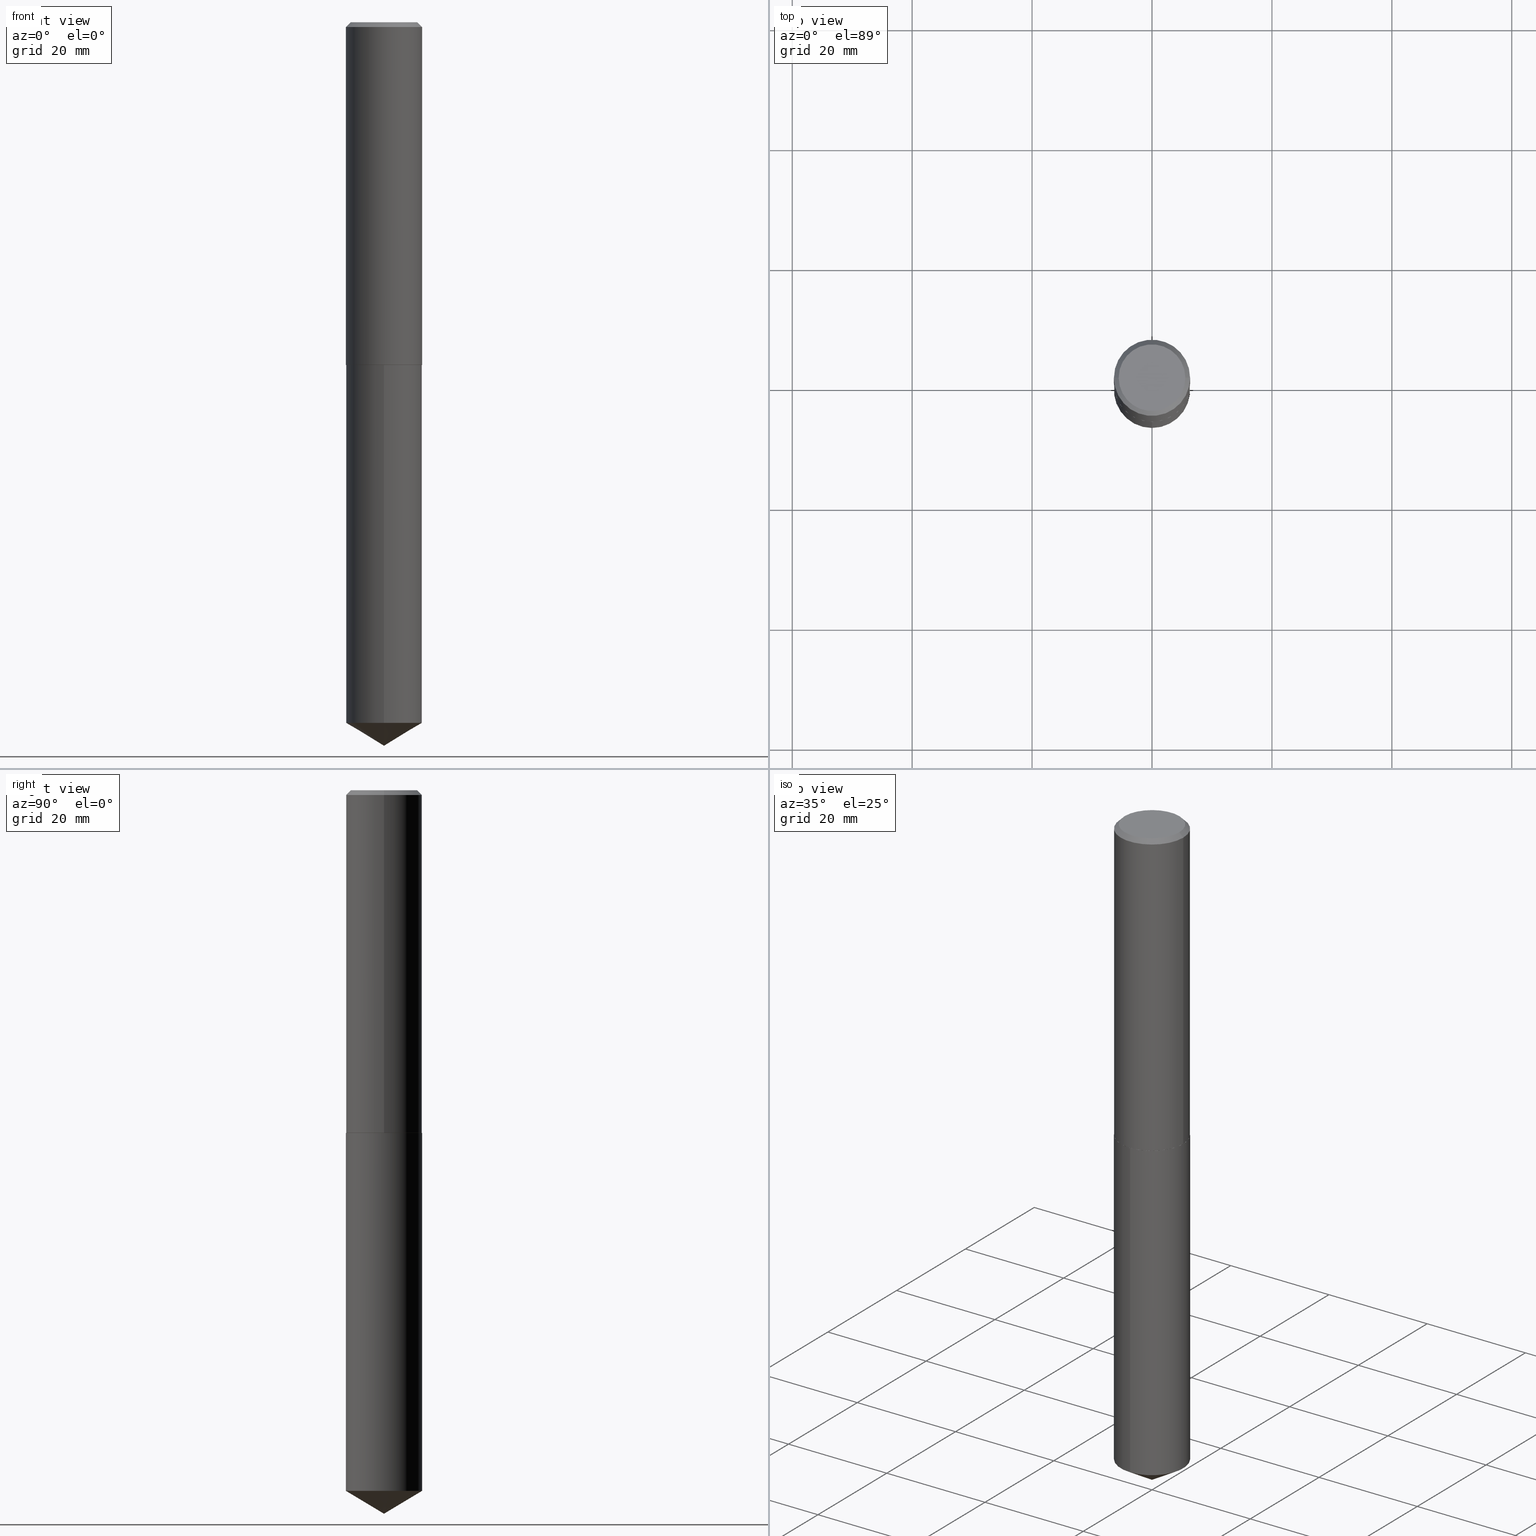
[diagram: canonical four-view strip — front | top / right | iso, engineering-drawing reading convention]
A machine part, canonical four-view strip (front | top / right | iso — engineering-drawing reading convention). The complete STEP part file that produces these views, byte-faithful:
ISO-10303-21;
HEADER;
FILE_DESCRIPTION (( 'STEP AP203' ),
    '1' );
FILE_NAME ('57213.STEP',
    '2024-04-23T00:07:51',
    ( '' ),
    ( '' ),
    'SwSTEP 2.0',
    'SolidWorks 2023',
    '' );
FILE_SCHEMA (( 'CONFIG_CONTROL_DESIGN' ));
ENDSEC;

DATA;
#1 = DIRECTION ( 'NONE',  ( 1.000000000000000000, -6.982962677686266711E-15, 4.876188151940832700E-29 ) ) ;
#2 = CARTESIAN_POINT ( 'NONE',  ( 5.502304813916556222E-29, -7.855833012397076871E-15, -2.249999999999999556 ) ) ;
#3 = CARTESIAN_POINT ( 'NONE',  ( 5.501082079513464541E-29, -7.854087271727656156E-15, -2.249499999999999833 ) ) ;
#4 = LINE ( 'NONE', #264, #312 ) ;
#5 = APPROVAL_DATE_TIME ( #248, #327 ) ;
#6 = VECTOR ( 'NONE', #35, 39.37007874015748143 ) ;
#7 = ADVANCED_FACE ( 'NONE', ( #27 ), #55, .T. ) ;
#8 = DIRECTION ( 'NONE',  ( 1.000000000000000000, -6.982962677686265922E-15, 4.876176775795935793E-29 ) ) ;
#9 = ORIENTED_EDGE ( 'NONE', *, *, #237, .F. ) ;
#10 = FACE_OUTER_BOUND ( 'NONE', #390, .T. ) ;
#11 = ADVANCED_FACE ( 'NONE', ( #207 ), #85, .F. ) ;
#12 = CARTESIAN_POINT ( 'NONE',  ( 1.124876667310066739E-28, -1.605986773344265841E-14, -4.599784845243109821 ) ) ;
#13 = ADVANCED_FACE ( 'NONE', ( #156 ), #296, .T. ) ;
#14 = ORGANIZATION ( 'UNSPECIFIED', 'UNSPECIFIED', '' ) ;
#15 = AXIS2_PLACEMENT_3D ( 'NONE', #132, #331, #268 ) ;
#16 = DIRECTION ( 'NONE',  ( -2.445468806185136597E-29, 3.491481338843145583E-15, 1.000000000000000000 ) ) ;
#17 = FACE_OUTER_BOUND ( 'NONE', #108, .T. ) ;
#18 = VERTEX_POINT ( 'NONE', #36 ) ;
#19 = CARTESIAN_POINT ( 'NONE',  ( 5.501082079513464541E-29, -7.854087271727656156E-15, -2.249499999999999833 ) ) ;
#20 = APPLICATION_CONTEXT ( 'configuration controlled 3d designs of mechanical parts and assemblies' ) ;
#21 = CYLINDRICAL_SURFACE ( 'NONE', #245, 0.2500000000000000000 ) ;
#22 = ORIENTED_EDGE ( 'NONE', *, *, #355, .T. ) ;
#23 = CALENDAR_DATE ( 2024, 22, 4 ) ;
#24 = CC_DESIGN_APPROVAL ( #327, ( #48 ) ) ;
#25 = AXIS2_PLACEMENT_3D ( 'NONE', #162, #356, #8 ) ;
#26 = APPROVAL_ROLE ( '' ) ;
#27 = FACE_OUTER_BOUND ( 'NONE', #105, .T. ) ;
#28 = CARTESIAN_POINT ( 'NONE',  ( 7.642090019328604414E-31, -1.091087918388490513E-16, -0.03125000000000021511 ) ) ;
#29 = DIRECTION ( 'NONE',  ( 2.445526819537206004E-29, -3.491398260421066944E-15, -1.000000000000000000 ) ) ;
#30 = ORIENTED_EDGE ( 'NONE', *, *, #355, .F. ) ;
#31 = CC_DESIGN_APPROVAL ( #315, ( #198 ) ) ;
#32 = CIRCLE ( 'NONE', #251, 0.2500000000000000000 ) ;
#33 = DIRECTION ( 'NONE',  ( -2.445526819537206284E-29, 3.491398260421066944E-15, 1.000000000000000000 ) ) ;
#34 = CARTESIAN_POINT ( 'NONE',  ( -2.335971725809272108E-47, 3.335148527799636409E-33, 9.552245033349346191E-19 ) ) ;
#35 = DIRECTION ( 'NONE',  ( -0.7071067811865451302, 2.468850131082231817E-15, -0.7071067811865499042 ) ) ;
#36 = CARTESIAN_POINT ( 'NONE',  ( -1.745740669421511457E-15, -0.2500000000000078271, -2.249999999999999112 ) ) ;
#37 = CARTESIAN_POINT ( 'NONE',  ( 7.642090019328604414E-31, -1.091087918388490513E-16, -0.03125000000000021511 ) ) ;
#38 = CLOSED_SHELL ( 'NONE', ( #293, #349, #7, #158, #72, #282, #283, #387 ) ) ;
#39 = CC_DESIGN_PERSON_AND_ORGANIZATION_ASSIGNMENT ( #239, #386, ( #103 ) ) ;
#40 = CC_DESIGN_DATE_AND_TIME_ASSIGNMENT ( #306, #337, ( #48 ) ) ;
#41 = DIRECTION ( 'NONE',  ( -2.445526819537206284E-29, 3.491398260421066944E-15, 1.000000000000000000 ) ) ;
#42 = LOCAL_TIME ( 20, 7, 51.00000000000000000, #189 ) ;
#43 = COORDINATED_UNIVERSAL_TIME_OFFSET ( 5, 0, .BEHIND. ) ;
#44 = ORIENTED_EDGE ( 'NONE', *, *, #171, .T. ) ;
#45 = VERTEX_POINT ( 'NONE', #389 ) ;
#46 = CARTESIAN_POINT ( 'NONE',  ( 1.161625239280173034E-28, -1.658414173700006552E-14, -4.750000000000000000 ) ) ;
#47 = ORIENTED_EDGE ( 'NONE', *, *, #314, .T. ) ;
#48 = SECURITY_CLASSIFICATION ( '', '', #288 ) ;
#49 = AXIS2_PLACEMENT_3D ( 'NONE', #308, #16, #67 ) ;
#50 = PLANE ( 'NONE',  #373 ) ;
#51 = VERTEX_POINT ( 'NONE', #124 ) ;
#52 = EDGE_CURVE ( 'NONE', #144, #45, #240, .T. ) ;
#53 = MECHANICAL_CONTEXT ( 'NONE', #20, 'mechanical' ) ;
#54 = ORIENTED_EDGE ( 'NONE', *, *, #142, .F. ) ;
#55 = CONICAL_SURFACE ( 'NONE', #211, 0.2500000000000002776, 0.7853981633973801113 ) ;
#56 = COORDINATED_UNIVERSAL_TIME_OFFSET ( 5, 0, .BEHIND. ) ;
#57 = DIRECTION ( 'NONE',  ( -2.445468806185136597E-29, 3.491481338843145583E-15, 1.000000000000000000 ) ) ;
#58 = APPROVAL_ROLE ( '' ) ;
#59 = DIRECTION ( 'NONE',  ( 1.000000000000000000, -6.982962677686266711E-15, 0.000000000000000000 ) ) ;
#60 = AXIS2_PLACEMENT_3D ( 'NONE', #260, #79, #116 ) ;
#61 = CARTESIAN_POINT ( 'NONE',  ( 5.502304813916556222E-29, -7.855833012397076871E-15, -2.249999999999999556 ) ) ;
#62 = DIRECTION ( 'NONE',  ( -2.445468806185136597E-29, 3.491481338843145583E-15, 1.000000000000000000 ) ) ;
#63 = DIRECTION ( 'NONE',  ( -5.985567269335943646E-15, -0.8571673007021107793, 0.5150380749100569311 ) ) ;
#64 = CYLINDRICAL_SURFACE ( 'NONE', #203, 0.2500000000000001110 ) ;
#65 = FACE_OUTER_BOUND ( 'NONE', #223, .T. ) ;
#66 = EDGE_CURVE ( 'NONE', #334, #225, #163, .T. ) ;
#67 = DIRECTION ( 'NONE',  ( 1.000000000000000000, -6.982962677686266711E-15, 0.000000000000000000 ) ) ;
#68 = DIRECTION ( 'NONE',  ( -6.982962677686265922E-15, -1.000000000000000000, 3.278217592397115862E-15 ) ) ;
#69 = ORIENTED_EDGE ( 'NONE', *, *, #178, .T. ) ;
#70 = VECTOR ( 'NONE', #343, 39.37007874015748143 ) ;
#71 = CALENDAR_DATE ( 2024, 22, 4 ) ;
#72 = ADVANCED_FACE ( 'NONE', ( #271 ), #78, .T. ) ;
#73 = EDGE_LOOP ( 'NONE', ( #54, #369 ) ) ;
#74 = DIRECTION ( 'NONE',  ( -6.982962677686265922E-15, -1.000000000000000000, 4.370956789862821150E-15 ) ) ;
#75 = ORIENTED_EDGE ( 'NONE', *, *, #109, .T. ) ;
#76 = EDGE_LOOP ( 'NONE', ( #174, #166, #134, #201 ) ) ;
#77 = EDGE_CURVE ( 'NONE', #144, #82, #216, .T. ) ;
#78 = CONICAL_SURFACE ( 'NONE', #206, 0.2500000000000002776, 0.7853981633973801113 ) ;
#79 = DIRECTION ( 'NONE',  ( 0.000000000000000000, 0.000000000000000000, 1.000000000000000000 ) ) ;
#80 = EDGE_LOOP ( 'NONE', ( #136, #75, #375 ) ) ;
#81 = EDGE_CURVE ( 'NONE', #225, #51, #146, .T. ) ;
#82 = VERTEX_POINT ( 'NONE', #138 ) ;
#83 = DIRECTION ( 'NONE',  ( 1.000000000000000000, -6.982962677686266711E-15, 0.000000000000000000 ) ) ;
#84 = CLOSED_SHELL ( 'NONE', ( #339, #127, #13, #149, #11 ) ) ;
#85 = PLANE ( 'NONE',  #302 ) ;
#86 = ADVANCED_BREP_SHAPE_REPRESENTATION ( '57213', ( #226, #359, #60 ), #235 ) ;
#87 = DIRECTION ( 'NONE',  ( -2.445526819537206284E-29, 3.491398260421066944E-15, 1.000000000000000000 ) ) ;
#88 = DATE_AND_TIME ( #205, #335 ) ;
#89 = CYLINDRICAL_SURFACE ( 'NONE', #15, 0.2500000000000000000 ) ;
#90 = ORIENTED_EDGE ( 'NONE', *, *, #319, .T. ) ;
#91 = CARTESIAN_POINT ( 'NONE',  ( 1.776356839400305291E-15, 0.2499999999999921452, -2.250000000000000444 ) ) ;
#92 = CARTESIAN_POINT ( 'NONE',  ( 1.776356839400362877E-15, 0.2499999999999921452, -2.250000000000000444 ) ) ;
#93 = DIRECTION ( 'NONE',  ( -2.445468806185136877E-29, 3.491481338843145188E-15, 1.000000000000000000 ) ) ;
#94 = ORIENTED_EDGE ( 'NONE', *, *, #109, .F. ) ;
#95 = DIRECTION ( 'NONE',  ( -6.982962677686265922E-15, -1.000000000000000000, 3.278217592397115862E-15 ) ) ;
#96 = DIRECTION ( 'NONE',  ( 1.000000000000000000, -6.982962677686268288E-15, 0.000000000000000000 ) ) ;
#97 = CIRCLE ( 'NONE', #148, 0.2500000000000000000 ) ;
#98 = PRODUCT_DEFINITION ( 'UNKNOWN', '', #198, #221 ) ;
#99 = CARTESIAN_POINT ( 'NONE',  ( 0.2187500000000000000, -1.662483614147127260E-15, 9.552245033460884497E-19 ) ) ;
#100 = AXIS2_PLACEMENT_3D ( 'NONE', #2, #360, #96 ) ;
#101 = DIRECTION ( 'NONE',  ( -2.445468806185136597E-29, 3.491481338843145583E-15, 1.000000000000000000 ) ) ;
#102 = DIRECTION ( 'NONE',  ( -1.000000000000000000, 6.982962677686265922E-15, -4.876176775795935793E-29 ) ) ;
#103 = PRODUCT ( '57213', '57213', '', ( #53 ) ) ;
#104 = DIRECTION ( 'NONE',  ( -2.445526819537206284E-29, 3.491398260421066944E-15, 1.000000000000000000 ) ) ;
#105 = EDGE_LOOP ( 'NONE', ( #122, #22, #250, #204 ) ) ;
#106 = CARTESIAN_POINT ( 'NONE',  ( 0.2500000000000000000, -1.854849461260415778E-15, -0.03125000000000021511 ) ) ;
#107 = APPROVAL_PERSON_ORGANIZATION ( #261, #315, #26 ) ;
#108 = EDGE_LOOP ( 'NONE', ( #241, #69, #233, #9 ) ) ;
#109 = EDGE_CURVE ( 'NONE', #334, #51, #374, .T. ) ;
#110 = CIRCLE ( 'NONE', #249, 0.2187500000000000000 ) ;
#111 = ORIENTED_EDGE ( 'NONE', *, *, #298, .F. ) ;
#112 = DIRECTION ( 'NONE',  ( 1.000000000000000000, -6.982962677686267499E-15, 4.876176775795936353E-29 ) ) ;
#113 = EDGE_LOOP ( 'NONE', ( #30, #44, #90, #196 ) ) ;
#114 = CC_DESIGN_PERSON_AND_ORGANIZATION_ASSIGNMENT ( #285, #202, ( #98 ) ) ;
#115 = AXIS2_PLACEMENT_3D ( 'NONE', #12, #255, #219 ) ;
#116 = DIRECTION ( 'NONE',  ( 1.000000000000000000, 0.000000000000000000, 0.000000000000000000 ) ) ;
#117 = EDGE_LOOP ( 'NONE', ( #316, #197 ) ) ;
#118 = EDGE_CURVE ( 'NONE', #82, #144, #140, .T. ) ;
#119 = ORIENTED_EDGE ( 'NONE', *, *, #215, .T. ) ;
#120 = LINE ( 'NONE', #160, #199 ) ;
#121 = DATE_TIME_ROLE ( 'creation_date' ) ;
#122 = ORIENTED_EDGE ( 'NONE', *, *, #142, .T. ) ;
#123 = PERSON_AND_ORGANIZATION ( #165, #14 ) ;
#124 = CARTESIAN_POINT ( 'NONE',  ( 1.776356839400362483E-15, 0.2499999999999839018, -4.599784845243110709 ) ) ;
#125 = CARTESIAN_POINT ( 'NONE',  ( 0.2495000000000004436, -9.598082200479803697E-15, -2.249999999999999556 ) ) ;
#126 = CONICAL_SURFACE ( 'NONE', #188, 0.2500000000000000000, 0.7853981633974449483 ) ;
#127 = ADVANCED_FACE ( 'NONE', ( #311 ), #130, .T. ) ;
#128 = CIRCLE ( 'NONE', #384, 0.2500000000000000000 ) ;
#129 = ORIENTED_EDGE ( 'NONE', *, *, #178, .F. ) ;
#130 = CONICAL_SURFACE ( 'NONE', #276, 65.52281426576847423, 1.029744258676654756 ) ;
#131 = DIRECTION ( 'NONE',  ( -1.000000000000000000, 6.982962677686266711E-15, 0.000000000000000000 ) ) ;
#132 = CARTESIAN_POINT ( 'NONE',  ( 5.502304813916556222E-29, -7.855833012397076871E-15, -2.249999999999999556 ) ) ;
#133 = LENGTH_MEASURE_WITH_UNIT ( LENGTH_MEASURE( 0.02539999999999999897 ), #187 );
#134 = ORIENTED_EDGE ( 'NONE', *, *, #161, .T. ) ;
#135 = SHAPE_DEFINITION_REPRESENTATION ( #363, #86 ) ;
#136 = ORIENTED_EDGE ( 'NONE', *, *, #66, .F. ) ;
#137 = CC_DESIGN_PERSON_AND_ORGANIZATION_ASSIGNMENT ( #177, #232, ( #48 ) ) ;
#138 = CARTESIAN_POINT ( 'NONE',  ( 0.2500000000000002776, -9.599827941149224411E-15, -2.249499999999999833 ) ) ;
#139 = CARTESIAN_POINT ( 'NONE',  ( 0.2500000000000002776, -9.599827941149224411E-15, -2.249499999999999833 ) ) ;
#140 = CIRCLE ( 'NONE', #49, 0.2500000000000002776 ) ;
#141 = CYLINDRICAL_SURFACE ( 'NONE', #286, 0.2500000000000001110 ) ;
#142 = EDGE_CURVE ( 'NONE', #281, #167, #338, .T. ) ;
#143 = CARTESIAN_POINT ( 'NONE',  ( -1.167985862904636054E-47, 1.667574263899818204E-33, 4.776122516674673095E-19 ) ) ;
#144 = VERTEX_POINT ( 'NONE', #217 ) ;
#145 = PERSON_AND_ORGANIZATION ( #165, #14 ) ;
#146 = CIRCLE ( 'NONE', #257, 0.2500000000000000000 ) ;
#147 = COORDINATED_UNIVERSAL_TIME_OFFSET ( 5, 0, .BEHIND. ) ;
#148 = AXIS2_PLACEMENT_3D ( 'NONE', #61, #87, #388 ) ;
#149 = ADVANCED_FACE ( 'NONE', ( #10 ), #89, .T. ) ;
#150 = DIRECTION ( 'NONE',  ( 6.982962677686265922E-15, 1.000000000000000000, -3.491398260421066944E-15 ) ) ;
#151 = CARTESIAN_POINT ( 'NONE',  ( 7.642090019328604414E-31, -1.091087918388490513E-16, -0.03125000000000021511 ) ) ;
#152 = CC_DESIGN_SECURITY_CLASSIFICATION ( #48, ( #198 ) ) ;
#153 = VECTOR ( 'NONE', #93, 39.37007874015748143 ) ;
#154 = EDGE_CURVE ( 'NONE', #45, #318, #244, .T. ) ;
#155 = PLANE ( 'NONE',  #25 ) ;
#156 = FACE_OUTER_BOUND ( 'NONE', #280, .T. ) ;
#157 = AXIS2_PLACEMENT_3D ( 'NONE', #34, #57, #1 ) ;
#158 = ADVANCED_FACE ( 'NONE', ( #243 ), #155, .F. ) ;
#159 = VERTEX_POINT ( 'NONE', #92 ) ;
#160 = CARTESIAN_POINT ( 'NONE',  ( -1.745740669421511457E-15, -0.2500000000000078271, -2.249999999999999112 ) ) ;
#161 = EDGE_CURVE ( 'NONE', #176, #45, #325, .T. ) ;
#162 = CARTESIAN_POINT ( 'NONE',  ( 5.502304813916556222E-29, -7.855833012397076871E-15, -2.249999999999999556 ) ) ;
#163 = LINE ( 'NONE', #326, #324 ) ;
#164 = CALENDAR_DATE ( 2024, 22, 4 ) ;
#165 = PERSON ( 'UNSPECIFIED', 'UNSPECIFIED', 'UNSPECIFIED', ('UNSPECIFIED'), ('UNSPECIFIED'), ('UNSPECIFIED') ) ;
#166 = ORIENTED_EDGE ( 'NONE', *, *, #275, .F. ) ;
#167 = VERTEX_POINT ( 'NONE', #270 ) ;
#168 = CARTESIAN_POINT ( 'NONE',  ( 7.642090019328604414E-31, -1.091087918388490513E-16, -0.03125000000000021511 ) ) ;
#169 = CONICAL_SURFACE ( 'NONE', #379, 0.2500000000000000000, 0.7853981633974449483 ) ;
#170 = ORIENTED_EDGE ( 'NONE', *, *, #180, .T. ) ;
#171 = EDGE_CURVE ( 'NONE', #167, #281, #224, .T. ) ;
#172 = CARTESIAN_POINT ( 'NONE',  ( 1.161625468199051285E-28, -1.658414173700006552E-14, -4.750000000000000000 ) ) ;
#173 = CARTESIAN_POINT ( 'NONE',  ( 5.502304813916556222E-29, -7.855833012397076871E-15, -2.249999999999999556 ) ) ;
#174 = ORIENTED_EDGE ( 'NONE', *, *, #180, .F. ) ;
#175 = CALENDAR_DATE ( 2024, 22, 4 ) ;
#176 = VERTEX_POINT ( 'NONE', #364 ) ;
#177 = PERSON_AND_ORGANIZATION ( #165, #14 ) ;
#178 = EDGE_CURVE ( 'NONE', #51, #159, #213, .T. ) ;
#179 = ORIENTED_EDGE ( 'NONE', *, *, #77, .T. ) ;
#180 = EDGE_CURVE ( 'NONE', #287, #318, #321, .T. ) ;
#181 = CARTESIAN_POINT ( 'NONE',  ( -8.466446158358713504E-28, 1.208722957625765304E-13, 34.62007874015748143 ) ) ;
#182 = DIRECTION ( 'NONE',  ( 1.000000000000000000, -6.982962677686266711E-15, 0.000000000000000000 ) ) ;
#183 = DIRECTION ( 'NONE',  ( -2.445468806185136597E-29, 3.491481338843145583E-15, 1.000000000000000000 ) ) ;
#184 = DIRECTION ( 'NONE',  ( 2.445468806185136597E-29, -3.491481338843145583E-15, -1.000000000000000000 ) ) ;
#185 = CARTESIAN_POINT ( 'NONE',  ( 5.501082079513464541E-29, -7.854087271727656156E-15, -2.249499999999999833 ) ) ;
#186 = VECTOR ( 'NONE', #238, 39.37007874015748143 ) ;
#187 =( LENGTH_UNIT ( ) NAMED_UNIT ( * ) SI_UNIT ( $, .METRE. ) );
#188 = AXIS2_PLACEMENT_3D ( 'NONE', #28, #299, #218 ) ;
#189 = COORDINATED_UNIVERSAL_TIME_OFFSET ( 5, 0, .BEHIND. ) ;
#190 = CARTESIAN_POINT ( 'NONE',  ( -8.466446158358713504E-28, 1.208722957625765304E-13, 34.62007874015748143 ) ) ;
#191 = PRODUCT_RELATED_PRODUCT_CATEGORY ( 'detail', '', ( #103 ) ) ;
#192 = APPROVAL_PERSON_ORGANIZATION ( #195, #327, #354 ) ;
#193 = AXIS2_PLACEMENT_3D ( 'NONE', #185, #242, #182 ) ;
#194 = ORIENTED_EDGE ( 'NONE', *, *, #52, .F. ) ;
#195 = PERSON_AND_ORGANIZATION ( #165, #14 ) ;
#196 = ORIENTED_EDGE ( 'NONE', *, *, #77, .F. ) ;
#197 = ORIENTED_EDGE ( 'NONE', *, *, #252, .T. ) ;
#198 = PRODUCT_DEFINITION_FORMATION_WITH_SPECIFIED_SOURCE ( 'ANY', '', #103, .NOT_KNOWN. ) ;
#199 = VECTOR ( 'NONE', #33, 39.37007874015748143 ) ;
#200 = VECTOR ( 'NONE', #279, 39.37007874015748143 ) ;
#201 = ORIENTED_EDGE ( 'NONE', *, *, #154, .T. ) ;
#202 = PERSON_AND_ORGANIZATION_ROLE ( 'creator' ) ;
#203 = AXIS2_PLACEMENT_3D ( 'NONE', #350, #183, #362 ) ;
#204 = ORIENTED_EDGE ( 'NONE', *, *, #319, .F. ) ;
#205 = CALENDAR_DATE ( 2024, 22, 4 ) ;
#206 = AXIS2_PLACEMENT_3D ( 'NONE', #3, #246, #361 ) ;
#207 = FACE_OUTER_BOUND ( 'NONE', #117, .T. ) ;
#208 = CIRCLE ( 'NONE', #115, 0.2500000000000000000 ) ;
#209 = ORIENTED_EDGE ( 'NONE', *, *, #118, .T. ) ;
#210 = LOCAL_TIME ( 20, 7, 51.00000000000000000, #56 ) ;
#211 = AXIS2_PLACEMENT_3D ( 'NONE', #19, #348, #83 ) ;
#212 = DIRECTION ( 'NONE',  ( -2.445526819537206284E-29, 3.491398260421066944E-15, 1.000000000000000000 ) ) ;
#213 = LINE ( 'NONE', #91, #186 ) ;
#214 = DIRECTION ( 'NONE',  ( 0.7071067811865451302, -7.319954787623248157E-15, -0.7071067811865499042 ) ) ;
#215 = EDGE_CURVE ( 'NONE', #82, #318, #4, .T. ) ;
#216 = CIRCLE ( 'NONE', #193, 0.2500000000000002776 ) ;
#217 = CARTESIAN_POINT ( 'NONE',  ( -0.2500000000000002776, -6.077730432327403325E-15, -2.249499999999999833 ) ) ;
#218 = DIRECTION ( 'NONE',  ( -1.000000000000000000, 6.982962677686266711E-15, 0.000000000000000000 ) ) ;
#219 = DIRECTION ( 'NONE',  ( -6.982962677686265922E-15, -1.000000000000000000, 4.370956789862821150E-15 ) ) ;
#220 = CC_DESIGN_DATE_AND_TIME_ASSIGNMENT ( #88, #121, ( #98 ) ) ;
#221 = DESIGN_CONTEXT ( 'detailed design', #358, 'design' ) ;
#222 = FACE_OUTER_BOUND ( 'NONE', #381, .T. ) ;
#223 = EDGE_LOOP ( 'NONE', ( #305, #170, #47, #297 ) ) ;
#224 = CIRCLE ( 'NONE', #100, 0.2495000000000004436 ) ;
#225 = VERTEX_POINT ( 'NONE', #267 ) ;
#226 = MANIFOLD_SOLID_BREP ( 'Body-Move/Copy2[1]', #84 ) ;
#227 = LINE ( 'NONE', #300, #70 ) ;
#228 = APPROVAL_STATUS ( 'not_yet_approved' ) ;
#229 = VECTOR ( 'NONE', #332, 39.37007874015747433 ) ;
#230 = CC_DESIGN_PERSON_AND_ORGANIZATION_ASSIGNMENT ( #145, #263, ( #198 ) ) ;
#231 = DIRECTION ( 'NONE',  ( -2.445468806185136597E-29, 3.491481338843145583E-15, 1.000000000000000000 ) ) ;
#232 = PERSON_AND_ORGANIZATION_ROLE ( 'classification_officer' ) ;
#233 = ORIENTED_EDGE ( 'NONE', *, *, #256, .F. ) ;
#234 = CC_DESIGN_APPROVAL ( #336, ( #98 ) ) ;
#235 =( GEOMETRIC_REPRESENTATION_CONTEXT ( 3 ) GLOBAL_UNCERTAINTY_ASSIGNED_CONTEXT ( ( #273 ) ) GLOBAL_UNIT_ASSIGNED_CONTEXT ( ( #368, #304, #345 ) ) REPRESENTATION_CONTEXT ( 'NONE', 'WORKASPACE' ) );
#236 = VECTOR ( 'NONE', #214, 39.37007874015748143 ) ;
#237 = EDGE_CURVE ( 'NONE', #225, #18, #120, .T. ) ;
#238 = DIRECTION ( 'NONE',  ( -2.445526819537206284E-29, 3.491398260421066944E-15, 1.000000000000000000 ) ) ;
#239 = PERSON_AND_ORGANIZATION ( #165, #14 ) ;
#240 = LINE ( 'NONE', #357, #153 ) ;
#241 = ORIENTED_EDGE ( 'NONE', *, *, #81, .T. ) ;
#242 = DIRECTION ( 'NONE',  ( -2.445468806185136597E-29, 3.491481338843145583E-15, 1.000000000000000000 ) ) ;
#243 = FACE_OUTER_BOUND ( 'NONE', #73, .T. ) ;
#244 = CIRCLE ( 'NONE', #262, 0.2500000000000000000 ) ;
#245 = AXIS2_PLACEMENT_3D ( 'NONE', #173, #41, #68 ) ;
#246 = DIRECTION ( 'NONE',  ( -2.445468806185136597E-29, 3.491481338843145583E-15, 1.000000000000000000 ) ) ;
#247 = CARTESIAN_POINT ( 'NONE',  ( 5.502304813916556222E-29, -7.855833012397076871E-15, -2.249999999999999556 ) ) ;
#248 = DATE_AND_TIME ( #71, #344 ) ;
#249 = AXIS2_PLACEMENT_3D ( 'NONE', #329, #231, #291 ) ;
#250 = ORIENTED_EDGE ( 'NONE', *, *, #118, .F. ) ;
#251 = AXIS2_PLACEMENT_3D ( 'NONE', #247, #323, #95 ) ;
#252 = EDGE_CURVE ( 'NONE', #159, #18, #32, .T. ) ;
#253 = DIMENSIONAL_EXPONENTS ( 1.000000000000000000, 0.000000000000000000, 0.000000000000000000, 0.000000000000000000, 0.000000000000000000, 0.000000000000000000, 0.000000000000000000 ) ;
#254 = CARTESIAN_POINT ( 'NONE',  ( 0.000000000000000000, 0.000000000000000000, 0.000000000000000000 ) ) ;
#255 = DIRECTION ( 'NONE',  ( -2.445526819537206284E-29, 3.491398260421066944E-15, 1.000000000000000000 ) ) ;
#256 = EDGE_CURVE ( 'NONE', #18, #159, #97, .T. ) ;
#257 = AXIS2_PLACEMENT_3D ( 'NONE', #294, #104, #74 ) ;
#258 = ORIENTED_EDGE ( 'NONE', *, *, #314, .F. ) ;
#259 = ORIENTED_EDGE ( 'NONE', *, *, #275, .T. ) ;
#260 = CARTESIAN_POINT ( 'NONE',  ( 0.000000000000000000, 0.000000000000000000, 0.000000000000000000 ) ) ;
#261 = PERSON_AND_ORGANIZATION ( #165, #14 ) ;
#262 = AXIS2_PLACEMENT_3D ( 'NONE', #151, #62, #59 ) ;
#263 = PERSON_AND_ORGANIZATION_ROLE ( 'creator' ) ;
#264 = CARTESIAN_POINT ( 'NONE',  ( 0.2500000000000001110, -1.745740669421567664E-15, 1.219044193948984649E-29 ) ) ;
#265 = DATE_AND_TIME ( #175, #380 ) ;
#266 = AXIS2_PLACEMENT_3D ( 'NONE', #365, #101, #367 ) ;
#267 = CARTESIAN_POINT ( 'NONE',  ( -1.745740669421453673E-15, -0.2500000000000159872, -4.599784845243108933 ) ) ;
#268 = DIRECTION ( 'NONE',  ( -6.982962677686265922E-15, -1.000000000000000000, 3.278217592397115862E-15 ) ) ;
#269 = DIRECTION ( 'NONE',  ( -6.982962677686265922E-15, -1.000000000000000000, 3.468864327941591848E-15 ) ) ;
#270 = CARTESIAN_POINT ( 'NONE',  ( -0.2495000000000004436, -6.080379659501513737E-15, -2.249999999999999556 ) ) ;
#271 = FACE_OUTER_BOUND ( 'NONE', #113, .T. ) ;
#272 = ORIENTED_EDGE ( 'NONE', *, *, #52, .T. ) ;
#273 = UNCERTAINTY_MEASURE_WITH_UNIT (LENGTH_MEASURE( 1.000000000000000082E-05 ), #368, 'distance_accuracy_value', 'NONE');
#274 = DIRECTION ( 'NONE',  ( -2.445468806185136877E-29, 3.491481338843145188E-15, 1.000000000000000000 ) ) ;
#275 = EDGE_CURVE ( 'NONE', #176, #287, #110, .T. ) ;
#276 = AXIS2_PLACEMENT_3D ( 'NONE', #190, #303, #342 ) ;
#277 = ORIENTED_EDGE ( 'NONE', *, *, #252, .F. ) ;
#278 = EDGE_CURVE ( 'NONE', #287, #176, #341, .T. ) ;
#279 = DIRECTION ( 'NONE',  ( 0.7071067811864992780, -2.468850131081751401E-15, 0.7071067811865957564 ) ) ;
#280 = EDGE_LOOP ( 'NONE', ( #94, #310, #111 ) ) ;
#281 = VERTEX_POINT ( 'NONE', #125 ) ;
#282 = ADVANCED_FACE ( 'NONE', ( #328 ), #64, .T. ) ;
#283 = ADVANCED_FACE ( 'NONE', ( #295 ), #169, .T. ) ;
#284 = APPLICATION_PROTOCOL_DEFINITION ( 'international standard', 'config_control_design', 1994, #20 ) ;
#285 = PERSON_AND_ORGANIZATION ( #165, #14 ) ;
#286 = AXIS2_PLACEMENT_3D ( 'NONE', #254, #376, #112 ) ;
#287 = VERTEX_POINT ( 'NONE', #99 ) ;
#288 = SECURITY_CLASSIFICATION_LEVEL ( 'unclassified' ) ;
#289 = CARTESIAN_POINT ( 'NONE',  ( 5.502304813916556222E-29, -7.855833012397076871E-15, -2.249999999999999556 ) ) ;
#290 = APPLICATION_PROTOCOL_DEFINITION ( 'international standard', 'config_control_design', 1994, #358 ) ;
#291 = DIRECTION ( 'NONE',  ( 1.000000000000000000, -6.982962677686266711E-15, 4.876188151940832700E-29 ) ) ;
#292 = CARTESIAN_POINT ( 'NONE',  ( -0.2500000000000000000, 1.636631877582717577E-15, -0.03125000000000021511 ) ) ;
#293 = ADVANCED_FACE ( 'NONE', ( #65 ), #126, .T. ) ;
#294 = CARTESIAN_POINT ( 'NONE',  ( 1.124876667310066739E-28, -1.605986773344265841E-14, -4.599784845243109821 ) ) ;
#295 = FACE_OUTER_BOUND ( 'NONE', #76, .T. ) ;
#296 = CONICAL_SURFACE ( 'NONE', #385, 65.52281426576847423, 1.029744258676654756 ) ;
#297 = ORIENTED_EDGE ( 'NONE', *, *, #161, .F. ) ;
#298 = EDGE_CURVE ( 'NONE', #51, #225, #208, .T. ) ;
#299 = DIRECTION ( 'NONE',  ( 2.445468806185136597E-29, -3.491481338843145583E-15, -1.000000000000000000 ) ) ;
#300 = CARTESIAN_POINT ( 'NONE',  ( -0.2500000000000002776, -6.077730432327403325E-15, -2.249499999999999833 ) ) ;
#301 = APPROVAL_STATUS ( 'not_yet_approved' ) ;
#302 = AXIS2_PLACEMENT_3D ( 'NONE', #289, #29, #150 ) ;
#303 = DIRECTION ( 'NONE',  ( -2.445526819537206284E-29, 3.491398260421066944E-15, 1.000000000000000000 ) ) ;
#304 =( NAMED_UNIT ( * ) PLANE_ANGLE_UNIT ( ) SI_UNIT ( $, .RADIAN. ) );
#305 = ORIENTED_EDGE ( 'NONE', *, *, #278, .F. ) ;
#306 = DATE_AND_TIME ( #164, #42 ) ;
#307 = ORIENTED_EDGE ( 'NONE', *, *, #215, .F. ) ;
#308 = CARTESIAN_POINT ( 'NONE',  ( 5.501082079513464541E-29, -7.854087271727656156E-15, -2.249499999999999833 ) ) ;
#309 = DIRECTION ( 'NONE',  ( -2.445468806185136597E-29, 3.491481338843145583E-15, 1.000000000000000000 ) ) ;
#310 = ORIENTED_EDGE ( 'NONE', *, *, #66, .T. ) ;
#311 = FACE_OUTER_BOUND ( 'NONE', #80, .T. ) ;
#312 = VECTOR ( 'NONE', #274, 39.37007874015748143 ) ;
#313 = LINE ( 'NONE', #139, #200 ) ;
#314 = EDGE_CURVE ( 'NONE', #318, #45, #128, .T. ) ;
#315 = APPROVAL ( #228, 'UNSPECIFIED' ) ;
#316 = ORIENTED_EDGE ( 'NONE', *, *, #256, .T. ) ;
#317 = APPROVAL_DATE_TIME ( #322, #315 ) ;
#318 = VERTEX_POINT ( 'NONE', #106 ) ;
#319 = EDGE_CURVE ( 'NONE', #281, #82, #313, .T. ) ;
#320 = APPROVAL_DATE_TIME ( #265, #336 ) ;
#321 = LINE ( 'NONE', #352, #236 ) ;
#322 = DATE_AND_TIME ( #23, #210 ) ;
#323 = DIRECTION ( 'NONE',  ( -2.445526819537206284E-29, 3.491398260421066944E-15, 1.000000000000000000 ) ) ;
#324 = VECTOR ( 'NONE', #63, 39.37007874015748143 ) ;
#325 = LINE ( 'NONE', #292, #6 ) ;
#326 = CARTESIAN_POINT ( 'NONE',  ( 1.161599133271741605E-28, -1.658451558989942018E-14, -4.750000000000000000 ) ) ;
#327 = APPROVAL ( #301, 'UNSPECIFIED' ) ;
#328 = FACE_OUTER_BOUND ( 'NONE', #377, .T. ) ;
#329 = CARTESIAN_POINT ( 'NONE',  ( -2.335971725809272108E-47, 3.335148527799636409E-33, 9.552245033349346191E-19 ) ) ;
#330 = APPROVAL_PERSON_ORGANIZATION ( #123, #336, #58 ) ;
#331 = DIRECTION ( 'NONE',  ( -2.445526819537206284E-29, 3.491398260421066944E-15, 1.000000000000000000 ) ) ;
#332 = DIRECTION ( 'NONE',  ( 6.090539988449781591E-15, 0.8571673007021143320, 0.5150380749100510469 ) ) ;
#333 = FACE_OUTER_BOUND ( 'NONE', #372, .T. ) ;
#334 = VERTEX_POINT ( 'NONE', #46 ) ;
#335 = LOCAL_TIME ( 20, 7, 51.00000000000000000, #383 ) ;
#336 = APPROVAL ( #351, 'UNSPECIFIED' ) ;
#337 = DATE_TIME_ROLE ( 'classification_date' ) ;
#338 = CIRCLE ( 'NONE', #266, 0.2495000000000004436 ) ;
#339 = ADVANCED_FACE ( 'NONE', ( #17 ), #21, .T. ) ;
#340 = ORIENTED_EDGE ( 'NONE', *, *, #154, .F. ) ;
#341 = CIRCLE ( 'NONE', #157, 0.2187500000000000000 ) ;
#342 = DIRECTION ( 'NONE',  ( -6.982962677686265922E-15, -1.000000000000000000, 3.468864327941591848E-15 ) ) ;
#343 = DIRECTION ( 'NONE',  ( -0.7071067811864992780, 7.493145998870180611E-15, 0.7071067811865957564 ) ) ;
#344 = LOCAL_TIME ( 20, 7, 51.00000000000000000, #43 ) ;
#345 =( NAMED_UNIT ( * ) SI_UNIT ( $, .STERADIAN. ) SOLID_ANGLE_UNIT ( ) );
#346 = ORIENTED_EDGE ( 'NONE', *, *, #298, .T. ) ;
#347 = PERSON_AND_ORGANIZATION_ROLE ( 'design_supplier' ) ;
#348 = DIRECTION ( 'NONE',  ( -2.445468806185136597E-29, 3.491481338843145583E-15, 1.000000000000000000 ) ) ;
#349 = ADVANCED_FACE ( 'NONE', ( #222 ), #141, .T. ) ;
#350 = CARTESIAN_POINT ( 'NONE',  ( 0.000000000000000000, 0.000000000000000000, 0.000000000000000000 ) ) ;
#351 = APPROVAL_STATUS ( 'not_yet_approved' ) ;
#352 = CARTESIAN_POINT ( 'NONE',  ( 0.2500000000000000000, -1.824233291281731991E-15, -0.03125000000000021511 ) ) ;
#353 = ORIENTED_EDGE ( 'NONE', *, *, #237, .T. ) ;
#354 = APPROVAL_ROLE ( '' ) ;
#355 = EDGE_CURVE ( 'NONE', #167, #144, #227, .T. ) ;
#356 = DIRECTION ( 'NONE',  ( -2.438088387897960049E-29, 3.491481338843145188E-15, 1.000000000000000000 ) ) ;
#357 = CARTESIAN_POINT ( 'NONE',  ( -0.2500000000000001110, 1.776356839400251254E-15, -1.229733772563727146E-29 ) ) ;
#358 = APPLICATION_CONTEXT ( 'configuration controlled 3d designs of mechanical parts and assemblies' ) ;
#359 = MANIFOLD_SOLID_BREP ( 'Body-Move/Copy2[2]', #38 ) ;
#360 = DIRECTION ( 'NONE',  ( -2.445468806185136597E-29, 3.491481338843145583E-15, 1.000000000000000000 ) ) ;
#361 = DIRECTION ( 'NONE',  ( 1.000000000000000000, -6.982962677686266711E-15, 0.000000000000000000 ) ) ;
#362 = DIRECTION ( 'NONE',  ( 1.000000000000000000, -6.982962677686267499E-15, 4.876176775795936353E-29 ) ) ;
#363 = PRODUCT_DEFINITION_SHAPE ( 'NONE', 'NONE',  #98 ) ;
#364 = CARTESIAN_POINT ( 'NONE',  ( -0.2187500000000000000, 1.582077481663294210E-15, 9.552245033240612038E-19 ) ) ;
#365 = CARTESIAN_POINT ( 'NONE',  ( 5.502304813916556222E-29, -7.855833012397076871E-15, -2.249999999999999556 ) ) ;
#366 = DIRECTION ( 'NONE',  ( 2.438088387897960049E-29, -3.491481338843145188E-15, -1.000000000000000000 ) ) ;
#367 = DIRECTION ( 'NONE',  ( 1.000000000000000000, -6.982962677686268288E-15, 0.000000000000000000 ) ) ;
#368 =( CONVERSION_BASED_UNIT ( 'INCH', #133 ) LENGTH_UNIT ( ) NAMED_UNIT ( #253 ) );
#369 = ORIENTED_EDGE ( 'NONE', *, *, #171, .F. ) ;
#370 = CC_DESIGN_PERSON_AND_ORGANIZATION_ASSIGNMENT ( #382, #347, ( #198 ) ) ;
#371 = DIRECTION ( 'NONE',  ( 1.000000000000000000, -6.982962677686266711E-15, 0.000000000000000000 ) ) ;
#372 = EDGE_LOOP ( 'NONE', ( #259, #378 ) ) ;
#373 = AXIS2_PLACEMENT_3D ( 'NONE', #143, #366, #102 ) ;
#374 = LINE ( 'NONE', #172, #229 ) ;
#375 = ORIENTED_EDGE ( 'NONE', *, *, #81, .F. ) ;
#376 = DIRECTION ( 'NONE',  ( -2.445468806185136597E-29, 3.491481338843145583E-15, 1.000000000000000000 ) ) ;
#377 = EDGE_LOOP ( 'NONE', ( #194, #179, #119, #340 ) ) ;
#378 = ORIENTED_EDGE ( 'NONE', *, *, #278, .T. ) ;
#379 = AXIS2_PLACEMENT_3D ( 'NONE', #37, #184, #131 ) ;
#380 = LOCAL_TIME ( 20, 7, 51.00000000000000000, #147 ) ;
#381 = EDGE_LOOP ( 'NONE', ( #209, #272, #258, #307 ) ) ;
#382 = PERSON_AND_ORGANIZATION ( #165, #14 ) ;
#383 = COORDINATED_UNIVERSAL_TIME_OFFSET ( 5, 0, .BEHIND. ) ;
#384 = AXIS2_PLACEMENT_3D ( 'NONE', #168, #309, #371 ) ;
#385 = AXIS2_PLACEMENT_3D ( 'NONE', #181, #212, #269 ) ;
#386 = PERSON_AND_ORGANIZATION_ROLE ( 'design_owner' ) ;
#387 = ADVANCED_FACE ( 'NONE', ( #333 ), #50, .F. ) ;
#388 = DIRECTION ( 'NONE',  ( -6.982962677686265922E-15, -1.000000000000000000, 3.278217592397115862E-15 ) ) ;
#389 = CARTESIAN_POINT ( 'NONE',  ( -0.2500000000000000000, -2.205241192383000191E-15, -0.03125000000000021511 ) ) ;
#390 = EDGE_LOOP ( 'NONE', ( #129, #346, #353, #277 ) ) ;
ENDSEC;
END-ISO-10303-21;
